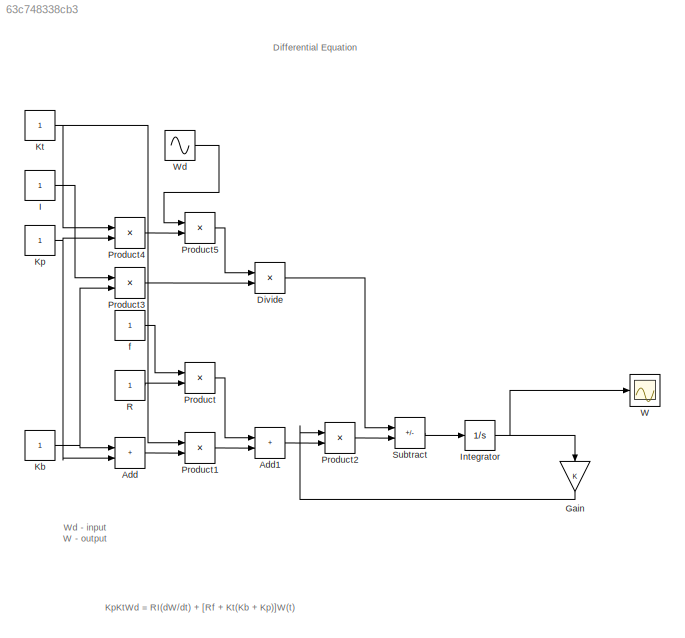
MODEL slx_63c748338cb3
KIND model
CONFIG AbsTol = auto
CONFIG EnableMultiTasking = off
CONFIG FixedStep = auto
CONFIG MaxStep = auto
CONFIG MinStep = auto
CONFIG RelTol = 1e-3
CONFIG SampleTimeConstraint = Unconstrained
CONFIG SolverName = VariableStepAuto
CONFIG StartTime = 0.0
CONFIG StopTime = 10
BLOCK [Sum] Add
  IconShape = rectangular
  Ports = [2, 1]
BLOCK [Sum] Add1
  IconShape = rectangular
  Ports = [2, 1]
BLOCK [Product] Divide
  Inputs = */
  Ports = [2, 1]
BLOCK [Gain] Gain
  NameLocation = left
BLOCK [Constant] I
BLOCK [Integrator] Integrator
  Ports = [1, 1]
BLOCK [Constant] Kb
BLOCK [Constant] Kp
BLOCK [Constant] Kt
BLOCK [Product] Product
  Ports = [2, 1]
BLOCK [Product] Product1
  Ports = [2, 1]
BLOCK [Product] Product2
  Ports = [2, 1]
BLOCK [Product] Product3
  Ports = [2, 1]
BLOCK [Product] Product4
  Ports = [2, 1]
BLOCK [Product] Product5
  Ports = [2, 1]
BLOCK [Constant] R
BLOCK [Sum] Subtract
  IconShape = rectangular
  Inputs = +-
  Ports = [2, 1]
BLOCK [Scope] W
  Floating = off
  NumInputPorts = 1
  Ports = [1]
  ScopeSpecificationString = Simulink.scopes.TimeScopeBlockCfg('CurrentConfiguration', extmgr.ConfigurationSet(extmgr.Configuration('Core','General UI',true),extmgr.Configuration('Core','Source UI',true),extmgr.Configuration('Sources','WiredSimulink',true),extmgr.Configuration('Visuals','Time Domain',true,'SerializedDisplays',{struct('MinYLimReal','-0.3948','MaxYLimReal','0.39522','YLabelReal','','MinYLimMag','0.00000','MaxYL...<+1383ch>
BLOCK [Sin] Wd
  Ports = [0, 1]
  SampleTime = 0
BLOCK [Constant] f
ANNOTATION (root): Differential Equation
ANNOTATION (root): KpKtWd = RI(dW/dt) + [Rf + Kt(Kb + Kp)]W(t)
ANNOTATION (root): Wd - input W - output
LINE Add1:1 -> Product2:2
LINE Add:1 -> Product1:2
LINE Divide:1 -> Subtract:1
LINE Gain:1 -> Product2:1
LINE I:1 -> Product3:1
NET Integrator:1 -> Gain:1, W:1
NET Kb:1 -> Add:1, Product3:2
NET Kp:1 -> Add:2, Product4:2
NET Kt:1 -> Product1:1, Product4:1
LINE Product1:1 -> Add1:2
LINE Product2:1 -> Subtract:2
LINE Product3:1 -> Divide:2
LINE Product4:1 -> Product5:2
LINE Product5:1 -> Divide:1
LINE Product:1 -> Add1:1
LINE R:1 -> Product:2
LINE Subtract:1 -> Integrator:1
LINE Wd:1 -> Product5:1
LINE f:1 -> Product:1
note: NET lines group one-source signal fan-out (src -> all destinations, sorted); 1:1 wires keep LINE
